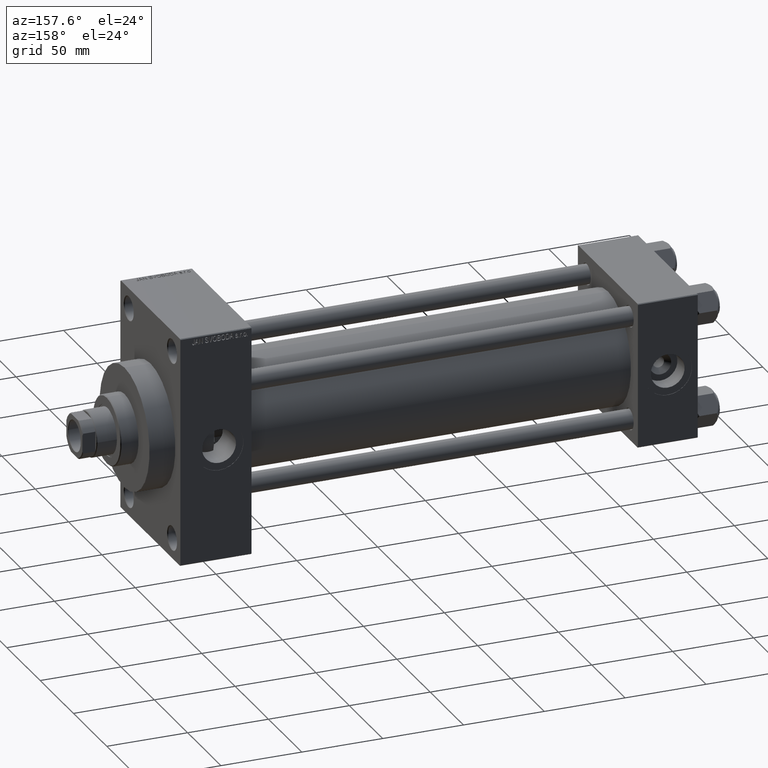
[diagram: clean part render]
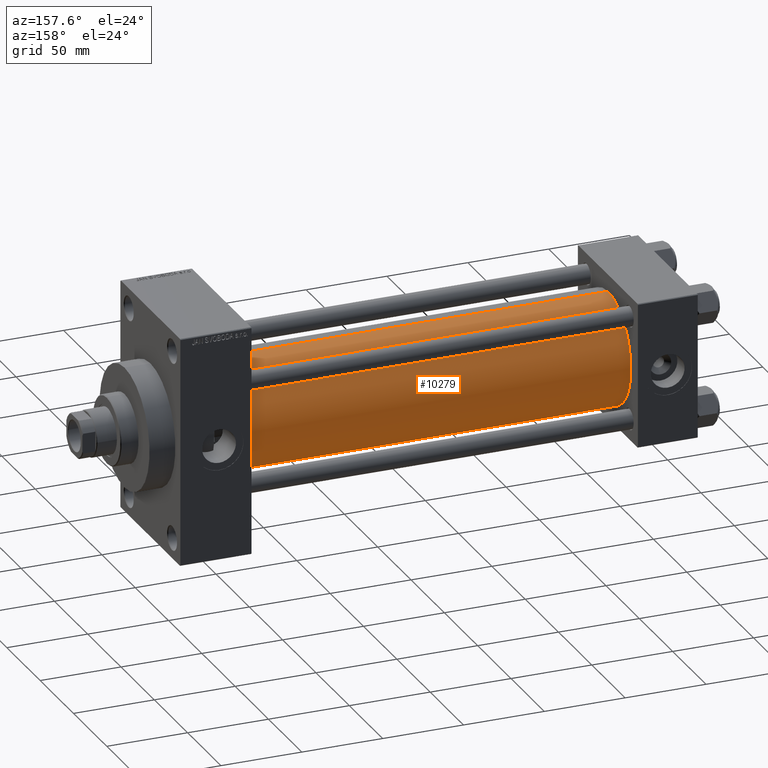
[diagram: same view with one face highlighted and labeled with its STEP entity id]
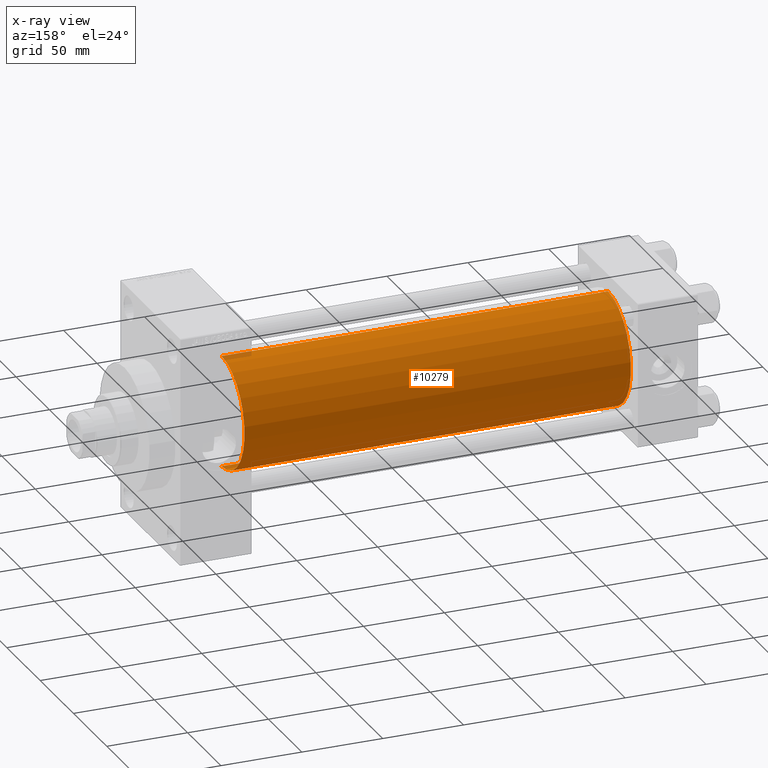
[diagram: x-ray of the same camera — body ghosted, the highlighted face saturated]
A machine part, auxiliary view. The second image highlights one B-rep face of the part: STEP entity #10279.
The next image is the same camera in x-ray: the body ghosted, the highlighted face saturated — about 0% of this face is hidden behind the body in this view.
In plain terms, the highlighted cylindrical surface (partial cylindrical patch) has radius 34.5 mm, axis along (-1, -0, -0).
Its self-contained STEP definition (entity closure, byte-faithful):
#514 = CARTESIAN_POINT ( 'NONE',  ( 275.9999999999999432, -2.602085213965210642E-15, 0.000000000000000000 ) ) ;
#2340 = DIRECTION ( 'NONE',  ( 0.000000000000000000, 0.000000000000000000, -1.000000000000000000 ) ) ;
#6024 = ORIENTED_EDGE ( 'NONE', *, *, #13804, .F. ) ;
#8626 = DIRECTION ( 'NONE',  ( -1.000000000000000000, -0.000000000000000000, -0.000000000000000000 ) ) ;
#8823 = EDGE_LOOP ( 'NONE', ( #34686, #35564, #31169, #6024 ) ) ;
#8965 = CARTESIAN_POINT ( 'NONE',  ( 275.9999999999999432, -2.602085213965210642E-15, 34.50000000000000000 ) ) ;
#9657 = CARTESIAN_POINT ( 'NONE',  ( 275.9999999999999432, -2.602085213965210642E-15, 0.000000000000000000 ) ) ;
#10279 = ADVANCED_FACE ( 'NONE', ( #24467 ), #13471, .T. ) ;
#11639 = LINE ( 'NONE', #40763, #13820 ) ;
#13471 = CYLINDRICAL_SURFACE ( 'NONE', #18252, 34.50000000000000000 ) ;
#13804 = EDGE_CURVE ( 'NONE', #44373, #26595, #11639, .T. ) ;
#13820 = VECTOR ( 'NONE', #40287, 1000.000000000000000 ) ;
#16432 = DIRECTION ( 'NONE',  ( 1.000000000000000000, -0.000000000000000000, 0.000000000000000000 ) ) ;
#17003 = EDGE_CURVE ( 'NONE', #17467, #44373, #26867, .T. ) ;
#17467 = VERTEX_POINT ( 'NONE', #22075 ) ;
#18252 = AXIS2_PLACEMENT_3D ( 'NONE', #9657, #27345, #38091 ) ;
#18888 = DIRECTION ( 'NONE',  ( 1.000000000000000000, 0.000000000000000000, 0.000000000000000000 ) ) ;
#20676 = CARTESIAN_POINT ( 'NONE',  ( 37.00000000000000711, 1.622946243093157097E-15, -34.50000000000000000 ) ) ;
#22075 = CARTESIAN_POINT ( 'NONE',  ( 275.9999999999999432, 1.622946243093157097E-15, -34.50000000000000000 ) ) ;
#24467 = FACE_OUTER_BOUND ( 'NONE', #8823, .T. ) ;
#25490 = EDGE_CURVE ( 'NONE', #17467, #25918, #44685, .T. ) ;
#25918 = VERTEX_POINT ( 'NONE', #20676 ) ;
#26595 = VERTEX_POINT ( 'NONE', #28731 ) ;
#26867 = CIRCLE ( 'NONE', #40501, 34.50000000000000000 ) ;
#27345 = DIRECTION ( 'NONE',  ( -1.000000000000000000, -0.000000000000000000, -0.000000000000000000 ) ) ;
#28731 = CARTESIAN_POINT ( 'NONE',  ( 37.00000000000000711, -2.602085213965210642E-15, 34.50000000000000000 ) ) ;
#31169 = ORIENTED_EDGE ( 'NONE', *, *, #36154, .T. ) ;
#33702 = CARTESIAN_POINT ( 'NONE',  ( 275.9999999999999432, 1.622946243093157097E-15, -34.50000000000000000 ) ) ;
#34686 = ORIENTED_EDGE ( 'NONE', *, *, #17003, .F. ) ;
#34915 = AXIS2_PLACEMENT_3D ( 'NONE', #45328, #16432, #41276 ) ;
#35564 = ORIENTED_EDGE ( 'NONE', *, *, #25490, .T. ) ;
#36154 = EDGE_CURVE ( 'NONE', #25918, #26595, #44045, .T. ) ;
#36964 = VECTOR ( 'NONE', #8626, 1000.000000000000000 ) ;
#38091 = DIRECTION ( 'NONE',  ( 0.000000000000000000, 0.000000000000000000, 1.000000000000000000 ) ) ;
#40287 = DIRECTION ( 'NONE',  ( -1.000000000000000000, -0.000000000000000000, -0.000000000000000000 ) ) ;
#40501 = AXIS2_PLACEMENT_3D ( 'NONE', #514, #18888, #2340 ) ;
#40763 = CARTESIAN_POINT ( 'NONE',  ( 275.9999999999999432, -2.602085213965210642E-15, 34.50000000000000000 ) ) ;
#41276 = DIRECTION ( 'NONE',  ( 0.000000000000000000, 0.000000000000000000, 1.000000000000000000 ) ) ;
#44045 = CIRCLE ( 'NONE', #34915, 34.50000000000000000 ) ;
#44373 = VERTEX_POINT ( 'NONE', #8965 ) ;
#44685 = LINE ( 'NONE', #33702, #36964 ) ;
#45328 = CARTESIAN_POINT ( 'NONE',  ( 37.00000000000000711, -2.602085213965210642E-15, 0.000000000000000000 ) ) ;